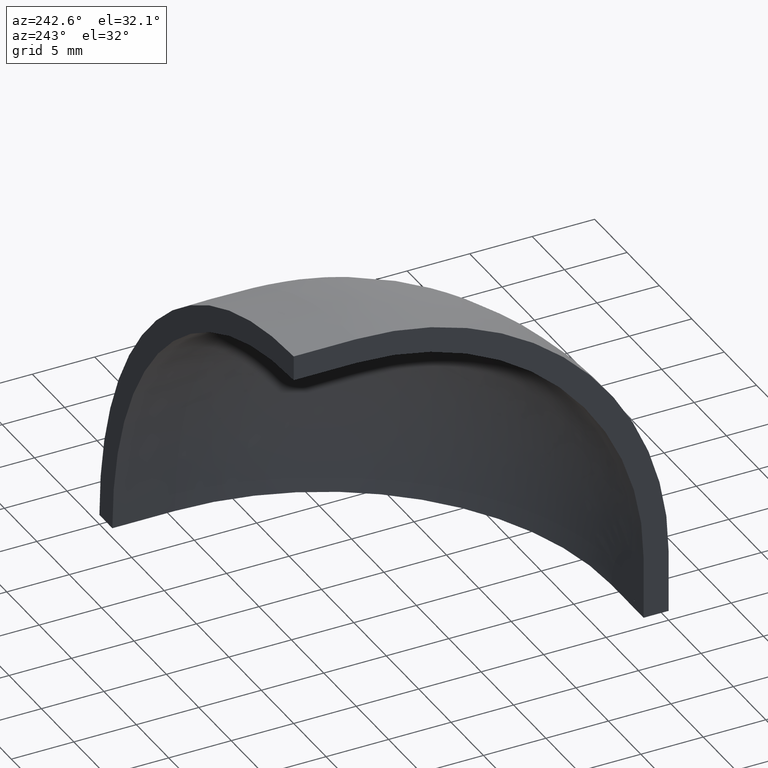
[diagram: clean part render]
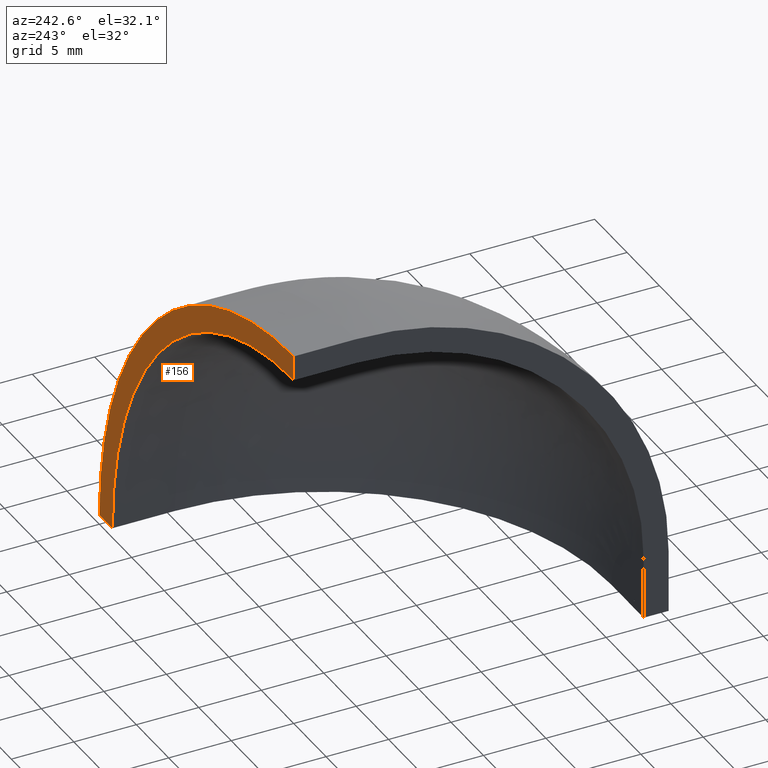
[diagram: same view with one face highlighted and labeled with its STEP entity id]
A machine part, auxiliary view. The second image highlights one B-rep face of the part: STEP entity #156.
In plain terms, the highlighted planar face has unit normal (0, 1, 0).
Its self-contained STEP definition (entity closure, byte-faithful):
#15=PLANE('',#174);
#24=LINE('',#289,#35);
#25=LINE('',#291,#36);
#35=VECTOR('',#213,2.00000117402253);
#36=VECTOR('',#214,2.00000117402253);
#49=FACE_OUTER_BOUND('',#58,.T.);
#58=EDGE_LOOP('',(#125,#126,#127,#128));
#70=CIRCLE('',#173,27.9945811754697);
#71=CIRCLE('',#175,29.9945823494923);
#82=VERTEX_POINT('',#282);
#83=VERTEX_POINT('',#284);
#84=VERTEX_POINT('',#288);
#85=VERTEX_POINT('',#290);
#100=EDGE_CURVE('',#82,#83,#70,.T.);
#101=EDGE_CURVE('',#82,#84,#24,.T.);
#102=EDGE_CURVE('',#85,#83,#25,.T.);
#103=EDGE_CURVE('',#84,#85,#71,.T.);
#125=ORIENTED_EDGE('',*,*,#101,.F.);
#126=ORIENTED_EDGE('',*,*,#100,.T.);
#127=ORIENTED_EDGE('',*,*,#102,.F.);
#128=ORIENTED_EDGE('',*,*,#103,.F.);
#156=ADVANCED_FACE('',(#49),#15,.T.);
#173=AXIS2_PLACEMENT_3D('',#286,#209,#210);
#174=AXIS2_PLACEMENT_3D('',#287,#211,#212);
#175=AXIS2_PLACEMENT_3D('',#292,#215,#216);
#209=DIRECTION('center_axis',(0.,-1.,0.));
#210=DIRECTION('ref_axis',(1.,0.,7.93169947902625E-17));
#211=DIRECTION('center_axis',(0.,1.,0.));
#212=DIRECTION('ref_axis',(0.,0.,1.));
#213=DIRECTION('',(1.,-2.7755559322803E-16,0.));
#214=DIRECTION('',(-6.12323399573677E-17,2.7755559322803E-16,-1.));
#215=DIRECTION('center_axis',(0.,-1.,0.));
#216=DIRECTION('ref_axis',(1.,0.,4.44169421673158E-16));
#282=CARTESIAN_POINT('',(27.9945811754697,0.,0.));
#284=CARTESIAN_POINT('',(1.71417371150049E-15,0.,27.9945811754697));
#286=CARTESIAN_POINT('Origin',(-6.66133814775094E-15,0.,-2.22044604925031E-15));
#287=CARTESIAN_POINT('Origin',(29.9945823494923,-5.55111512312578E-16,0.));
#288=CARTESIAN_POINT('',(29.9945823494923,-5.55111512312578E-16,0.));
#289=CARTESIAN_POINT('',(27.9945811754697,0.,0.));
#290=CARTESIAN_POINT('',(1.83663846330337E-15,-5.55111512312578E-16,29.9945823494923));
#291=CARTESIAN_POINT('',(1.71417371150049E-15,0.,27.9945811754697));
#292=CARTESIAN_POINT('Origin',(-8.88178419700125E-15,-5.55111512312578E-16,
-1.33226762955019E-14));